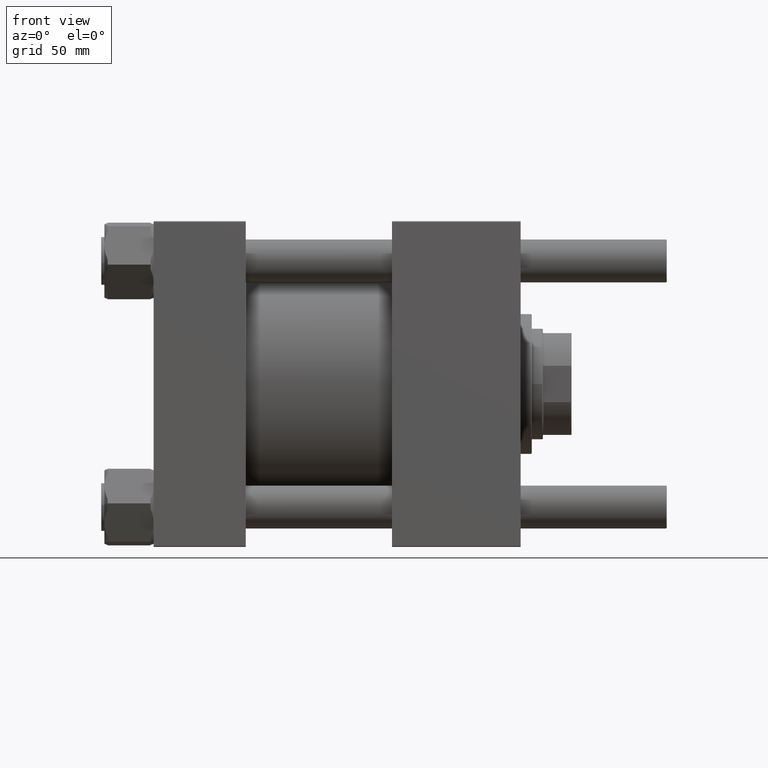
[diagram: clean part render]
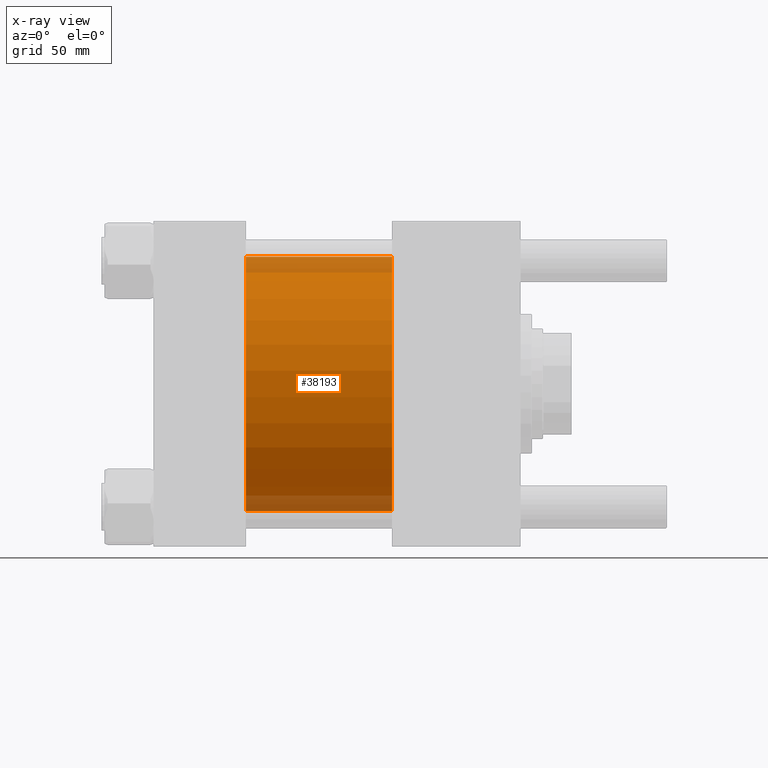
[diagram: x-ray — body ghosted, one internal face saturated and labeled with its STEP entity id]
A machine part, front view, then the same camera in x-ray: the body is ghosted and one INTERNAL B-rep face — a face not visible from any outside direction — is saturated and labeled: STEP entity #38193.
In plain terms, the highlighted cylindrical surface (partial cylindrical patch) has radius 80 mm, axis along (-1, -0, -0).
Its self-contained STEP definition (entity closure, byte-faithful):
#407 = CARTESIAN_POINT ( 'NONE',  ( 150.0000000000000000, 7.195089179213615410E-15, -80.00000000000000000 ) ) ;
#970 = LINE ( 'NONE', #407, #21810 ) ;
#2951 = CARTESIAN_POINT ( 'NONE',  ( 150.0000000000000000, -2.602085213965210642E-15, 0.000000000000000000 ) ) ;
#4365 = VERTEX_POINT ( 'NONE', #30032 ) ;
#4937 = EDGE_LOOP ( 'NONE', ( #45428, #48646, #30263, #20337 ) ) ;
#5366 = AXIS2_PLACEMENT_3D ( 'NONE', #2951, #29957, #42694 ) ;
#7277 = AXIS2_PLACEMENT_3D ( 'NONE', #9942, #36639, #24976 ) ;
#7929 = FACE_OUTER_BOUND ( 'NONE', #4937, .T. ) ;
#9942 = CARTESIAN_POINT ( 'NONE',  ( 58.00000000000000000, -2.602085213965210642E-15, 0.000000000000000000 ) ) ;
#10267 = CARTESIAN_POINT ( 'NONE',  ( 150.0000000000000000, -2.602085213965210642E-15, 80.00000000000000000 ) ) ;
#11625 = CARTESIAN_POINT ( 'NONE',  ( 150.0000000000000000, -2.602085213965210642E-15, 80.00000000000000000 ) ) ;
#14897 = EDGE_CURVE ( 'NONE', #24390, #55383, #25564, .T. ) ;
#16924 = DIRECTION ( 'NONE',  ( -1.000000000000000000, -0.000000000000000000, -0.000000000000000000 ) ) ;
#17143 = DIRECTION ( 'NONE',  ( -1.000000000000000000, -0.000000000000000000, -0.000000000000000000 ) ) ;
#17529 = DIRECTION ( 'NONE',  ( -1.000000000000000000, -0.000000000000000000, -0.000000000000000000 ) ) ;
#20337 = ORIENTED_EDGE ( 'NONE', *, *, #14897, .F. ) ;
#21810 = VECTOR ( 'NONE', #17529, 1000.000000000000000 ) ;
#22428 = EDGE_CURVE ( 'NONE', #54848, #4365, #970, .T. ) ;
#24356 = VECTOR ( 'NONE', #17143, 1000.000000000000000 ) ;
#24390 = VERTEX_POINT ( 'NONE', #10267 ) ;
#24976 = DIRECTION ( 'NONE',  ( 0.000000000000000000, 0.000000000000000000, -1.000000000000000000 ) ) ;
#25051 = CYLINDRICAL_SURFACE ( 'NONE', #32307, 80.00000000000000000 ) ;
#25564 = LINE ( 'NONE', #11625, #24356 ) ;
#29957 = DIRECTION ( 'NONE',  ( 1.000000000000000000, 0.000000000000000000, 0.000000000000000000 ) ) ;
#30032 = CARTESIAN_POINT ( 'NONE',  ( 58.00000000000000000, 7.195089179213615410E-15, -80.00000000000000000 ) ) ;
#30263 = ORIENTED_EDGE ( 'NONE', *, *, #38403, .F. ) ;
#30380 = CIRCLE ( 'NONE', #5366, 80.00000000000000000 ) ;
#32307 = AXIS2_PLACEMENT_3D ( 'NONE', #38110, #16924, #43326 ) ;
#35491 = EDGE_CURVE ( 'NONE', #24390, #54848, #30380, .T. ) ;
#36639 = DIRECTION ( 'NONE',  ( 1.000000000000000000, 0.000000000000000000, 0.000000000000000000 ) ) ;
#36952 = CIRCLE ( 'NONE', #7277, 80.00000000000000000 ) ;
#38110 = CARTESIAN_POINT ( 'NONE',  ( 150.0000000000000000, -2.602085213965210642E-15, 0.000000000000000000 ) ) ;
#38193 = ADVANCED_FACE ( 'NONE', ( #7929 ), #25051, .F. ) ;
#38403 = EDGE_CURVE ( 'NONE', #55383, #4365, #36952, .T. ) ;
#40796 = CARTESIAN_POINT ( 'NONE',  ( 150.0000000000000000, 7.195089179213615410E-15, -80.00000000000000000 ) ) ;
#42694 = DIRECTION ( 'NONE',  ( 0.000000000000000000, 0.000000000000000000, -1.000000000000000000 ) ) ;
#43326 = DIRECTION ( 'NONE',  ( 0.000000000000000000, 0.000000000000000000, 1.000000000000000000 ) ) ;
#45428 = ORIENTED_EDGE ( 'NONE', *, *, #35491, .T. ) ;
#48646 = ORIENTED_EDGE ( 'NONE', *, *, #22428, .T. ) ;
#53484 = CARTESIAN_POINT ( 'NONE',  ( 58.00000000000000000, -2.602085213965210642E-15, 80.00000000000000000 ) ) ;
#54848 = VERTEX_POINT ( 'NONE', #40796 ) ;
#55383 = VERTEX_POINT ( 'NONE', #53484 ) ;